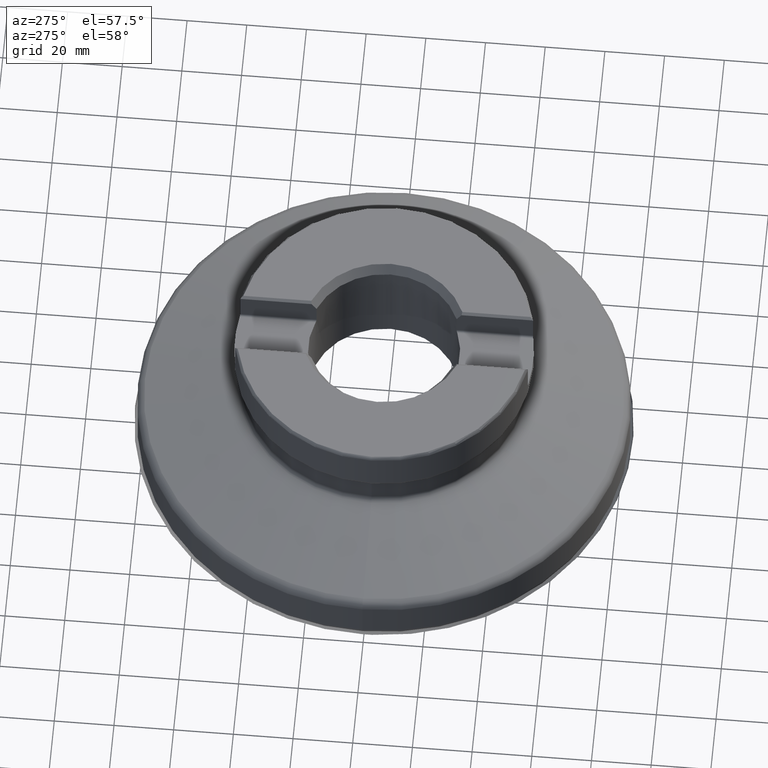
[diagram: clean part render]
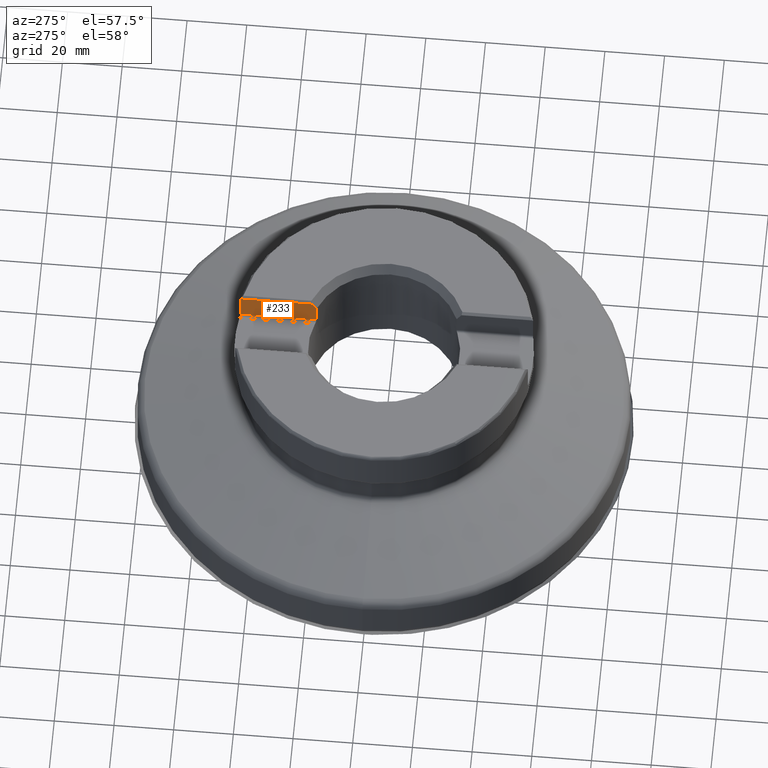
[diagram: same view with one face highlighted and labeled with its STEP entity id]
A machine part, auxiliary view. The second image highlights one B-rep face of the part: STEP entity #233.
In plain terms, the highlighted planar face has unit normal (-1, 0, 0).
Its self-contained STEP definition (entity closure, byte-faithful):
#173=PLANE('',#1098);
#201=FACE_OUTER_BOUND('',#475,.T.);
#233=ADVANCED_FACE('',(#201),#173,.T.);
#285=LINE('',#1649,#321);
#287=LINE('',#1709,#323);
#304=LINE('',#1954,#340);
#305=LINE('',#1955,#341);
#321=VECTOR('',#1153,1.);
#323=VECTOR('',#1161,1.);
#340=VECTOR('',#1282,1.);
#341=VECTOR('',#1283,1.);
#475=EDGE_LOOP('',(#650,#651,#652,#653,#654,#655));
#650=ORIENTED_EDGE('',*,*,#850,.F.);
#651=ORIENTED_EDGE('',*,*,#912,.T.);
#652=ORIENTED_EDGE('',*,*,#843,.F.);
#653=ORIENTED_EDGE('',*,*,#879,.F.);
#654=ORIENTED_EDGE('',*,*,#913,.T.);
#655=ORIENTED_EDGE('',*,*,#863,.F.);
#761=VERTEX_POINT('',#1648);
#762=VERTEX_POINT('',#1650);
#768=VERTEX_POINT('',#1708);
#769=VERTEX_POINT('',#1710);
#780=VERTEX_POINT('',#1799);
#790=VERTEX_POINT('',#1852);
#843=EDGE_CURVE('',#761,#762,#285,.T.);
#850=EDGE_CURVE('',#768,#769,#287,.T.);
#863=EDGE_CURVE('',#769,#780,#1020,.T.);
#879=EDGE_CURVE('',#790,#761,#1026,.T.);
#912=EDGE_CURVE('',#768,#762,#304,.T.);
#913=EDGE_CURVE('',#790,#780,#305,.T.);
#1020=B_SPLINE_CURVE_WITH_KNOTS('',3,(#1792,#1793,#1794,#1795,#1796,#1797,
#1798),.UNSPECIFIED.,.F.,.F.,(4,3,4),(0.,0.61983785396669,1.),
 .UNSPECIFIED.);
#1026=B_SPLINE_CURVE_WITH_KNOTS('',3,(#1853,#1854,#1855,#1856),
 .UNSPECIFIED.,.F.,.F.,(4,4),(0.,1.),.UNSPECIFIED.);
#1098=AXIS2_PLACEMENT_3D('',#1956,#1284,#1285);
#1153=DIRECTION('',(-1.17145536458252E-15,0.,-1.));
#1161=DIRECTION('',(1.17145536458252E-15,0.,1.));
#1282=DIRECTION('',(0.,-1.,0.));
#1283=DIRECTION('',(0.,1.,0.));
#1284=DIRECTION('',(-1.,0.,8.65327692351323E-16));
#1285=DIRECTION('',(8.65627014512427E-16,0.,1.));
#1648=CARTESIAN_POINT('',(9.72500000000007,23.4645344083363,60.0358983848623));
#1649=CARTESIAN_POINT('',(9.72500000000002,23.4645344083363,-8.41531180811663E-15));
#1650=CARTESIAN_POINT('',(9.72500000000008,23.4645344083363,53.3));
#1708=CARTESIAN_POINT('',(9.72500000000008,49.0451259046197,53.3));
#1709=CARTESIAN_POINT('',(9.72500000000002,49.0451259046197,-8.41531180811663E-15));
#1710=CARTESIAN_POINT('',(9.72500000000007,49.0451259046197,62.2));
#1792=CARTESIAN_POINT('',(9.72500000000007,49.0451259046197,62.2));
#1793=CARTESIAN_POINT('',(9.72500000000007,49.0451259046197,62.3051033361071));
#1794=CARTESIAN_POINT('',(9.72500000000007,49.0337301442324,62.4108022871876));
#1795=CARTESIAN_POINT('',(9.72500000000007,49.0113547869815,62.5134962726431));
#1796=CARTESIAN_POINT('',(9.72500000000007,48.9975824541883,62.5767057994313));
#1797=CARTESIAN_POINT('',(9.72500000000007,48.9796037709526,62.6391405779891));
#1798=CARTESIAN_POINT('',(9.72500000000007,48.9576663102956,62.6999999999982));
#1799=CARTESIAN_POINT('',(9.72500000000007,48.9576663102956,62.6999999999982));
#1852=CARTESIAN_POINT('',(9.72500000000007,25.121438504434,62.7));
#1853=CARTESIAN_POINT('',(9.72500000000007,25.121438504434,62.7));
#1854=CARTESIAN_POINT('',(9.72500000000007,24.5709564929307,61.8108378163032));
#1855=CARTESIAN_POINT('',(9.72500000000007,24.0187784868094,60.9227274406642));
#1856=CARTESIAN_POINT('',(9.72500000000007,23.4645344083363,60.0358983848623));
#1954=CARTESIAN_POINT('',(9.72500000000006,23.4645344083363,53.3));
#1955=CARTESIAN_POINT('',(9.72500000000007,48.2785928575328,62.7));
#1956=CARTESIAN_POINT('',(9.72500000000006,-90.,52.5));